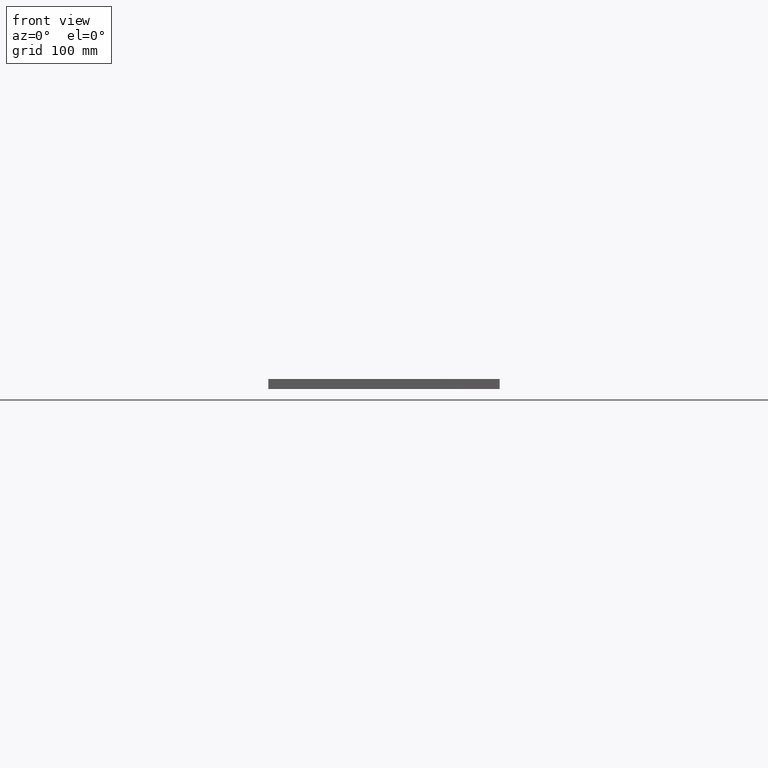
[diagram: clean part render]
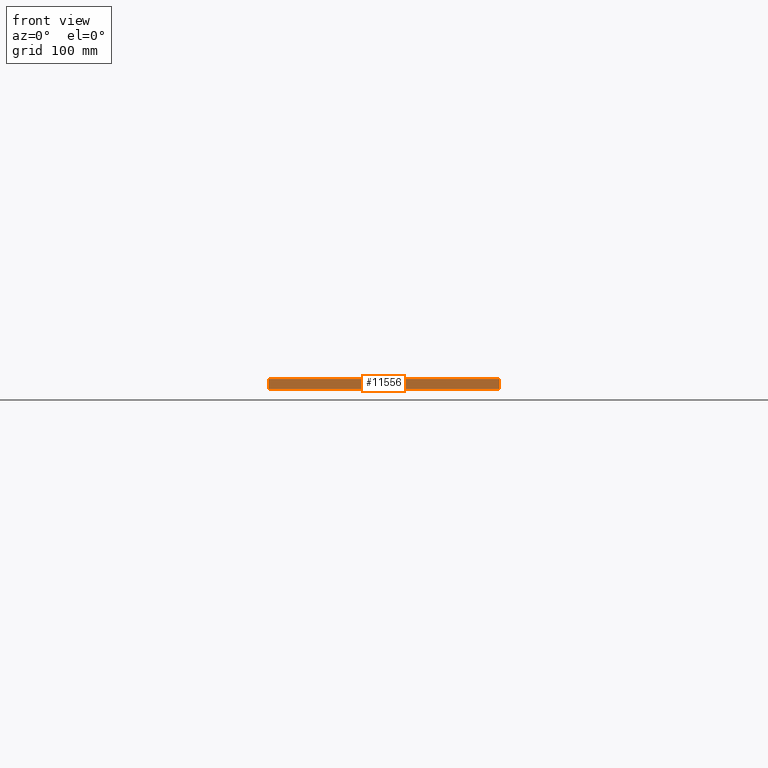
[diagram: same view with one face highlighted and labeled with its STEP entity id]
A machine part, front view. The second image highlights one B-rep face of the part: STEP entity #11556.
In plain terms, the highlighted planar face has unit normal (0, 1, 0).
Its self-contained STEP definition (entity closure, byte-faithful):
#502 = ORIENTED_EDGE ( 'NONE', *, *, #11755, .T. ) ;
#923 = VERTEX_POINT ( 'NONE', #22068 ) ;
#1199 = VECTOR ( 'NONE', #5074, 1000.000000000000000 ) ;
#1326 = VECTOR ( 'NONE', #5507, 1000.000000000000000 ) ;
#1787 = LINE ( 'NONE', #14776, #1199 ) ;
#2023 = EDGE_CURVE ( 'NONE', #4935, #4664, #13896, .T. ) ;
#3940 = VECTOR ( 'NONE', #14433, 1000.000000000000000 ) ;
#4575 = LINE ( 'NONE', #16394, #3940 ) ;
#4664 = VERTEX_POINT ( 'NONE', #25147 ) ;
#4714 = CARTESIAN_POINT ( 'NONE',  ( 150.0000000000000600, -450.0000000000000000, 13.00000000000000000 ) ) ;
#4935 = VERTEX_POINT ( 'NONE', #24117 ) ;
#5074 = DIRECTION ( 'NONE',  ( -0.0000000000000000000, -0.0000000000000000000, -1.000000000000000000 ) ) ;
#5507 = DIRECTION ( 'NONE',  ( 1.000000000000000000, 0.0000000000000000000, 0.0000000000000000000 ) ) ;
#5880 = LINE ( 'NONE', #23095, #1326 ) ;
#6682 = FACE_OUTER_BOUND ( 'NONE', #23016, .T. ) ;
#8086 = VECTOR ( 'NONE', #16371, 1000.000000000000000 ) ;
#9423 = VERTEX_POINT ( 'NONE', #17186 ) ;
#10169 = PLANE ( 'NONE',  #17733 ) ;
#10366 = ORIENTED_EDGE ( 'NONE', *, *, #21565, .T. ) ;
#11556 = ADVANCED_FACE ( 'NONE', ( #6682 ), #10169, .F. ) ;
#11725 = ORIENTED_EDGE ( 'NONE', *, *, #2023, .F. ) ;
#11755 = EDGE_CURVE ( 'NONE', #923, #9423, #1787, .T. ) ;
#12133 = DIRECTION ( 'NONE',  ( 0.0000000000000000000, -0.0000000000000000000, 1.000000000000000000 ) ) ;
#13896 = LINE ( 'NONE', #4714, #8086 ) ;
#14433 = DIRECTION ( 'NONE',  ( 1.000000000000000000, 0.0000000000000000000, 0.0000000000000000000 ) ) ;
#14776 = CARTESIAN_POINT ( 'NONE',  ( -149.9999999999999400, -450.0000000000000000, 13.00000000000000000 ) ) ;
#15695 = EDGE_CURVE ( 'NONE', #923, #4935, #5880, .T. ) ;
#16371 = DIRECTION ( 'NONE',  ( -0.0000000000000000000, -0.0000000000000000000, -1.000000000000000000 ) ) ;
#16394 = CARTESIAN_POINT ( 'NONE',  ( -149.9999999999999400, -450.0000000000000000, 0.0000000000000000000 ) ) ;
#17186 = CARTESIAN_POINT ( 'NONE',  ( -149.9999999999999400, -450.0000000000000000, 0.0000000000000000000 ) ) ;
#17733 = AXIS2_PLACEMENT_3D ( 'NONE', #19914, #17946, #12133 ) ;
#17946 = DIRECTION ( 'NONE',  ( 0.0000000000000000000, 1.000000000000000000, 0.0000000000000000000 ) ) ;
#19387 = ORIENTED_EDGE ( 'NONE', *, *, #15695, .F. ) ;
#19914 = CARTESIAN_POINT ( 'NONE',  ( -149.9999999999999400, -450.0000000000000000, 13.00000000000000000 ) ) ;
#21565 = EDGE_CURVE ( 'NONE', #9423, #4664, #4575, .T. ) ;
#22068 = CARTESIAN_POINT ( 'NONE',  ( -149.9999999999999400, -450.0000000000000000, 13.00000000000000000 ) ) ;
#23016 = EDGE_LOOP ( 'NONE', ( #10366, #11725, #19387, #502 ) ) ;
#23095 = CARTESIAN_POINT ( 'NONE',  ( -149.9999999999999400, -450.0000000000000000, 13.00000000000000000 ) ) ;
#24117 = CARTESIAN_POINT ( 'NONE',  ( 150.0000000000000600, -450.0000000000000000, 13.00000000000000000 ) ) ;
#25147 = CARTESIAN_POINT ( 'NONE',  ( 150.0000000000000600, -450.0000000000000000, 0.0000000000000000000 ) ) ;